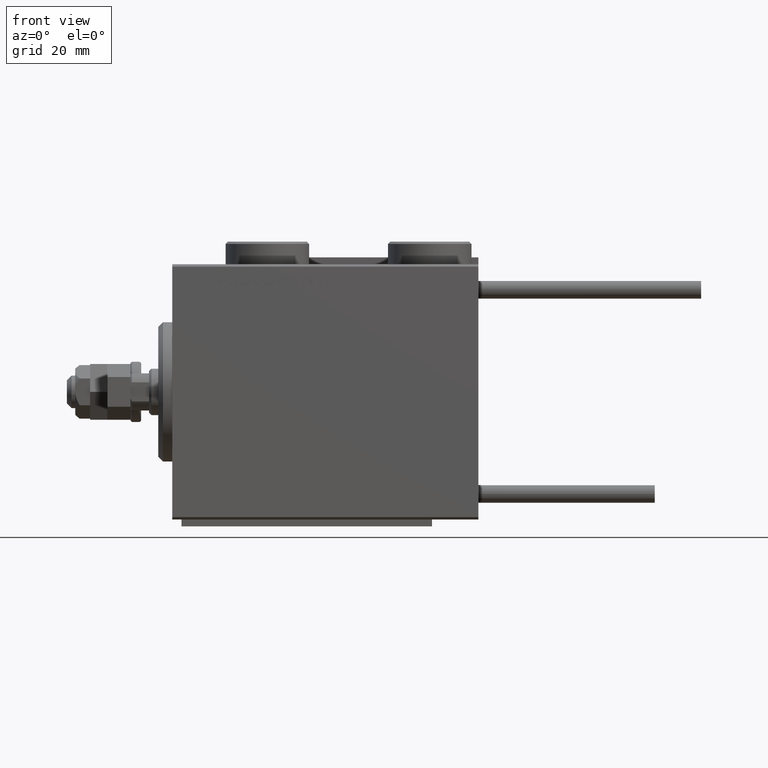
[diagram: clean part render]
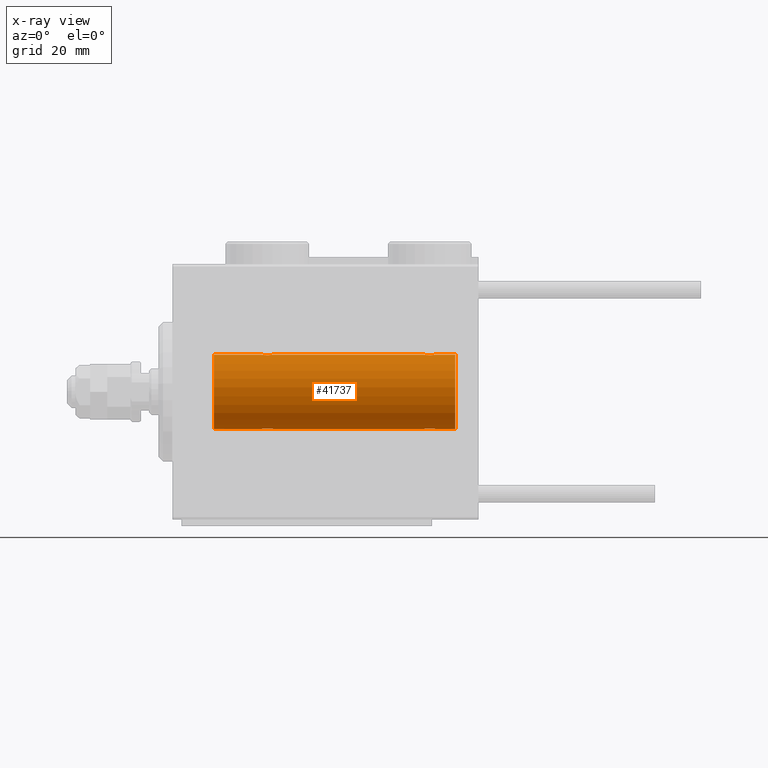
[diagram: x-ray — body ghosted, one internal face saturated and labeled with its STEP entity id]
A machine part, front view, then the same camera in x-ray: the body is ghosted and one INTERNAL B-rep face — a face not visible from any outside direction — is saturated and labeled: STEP entity #41737.
In plain terms, the highlighted cylindrical surface (partial cylindrical patch) has radius 8 mm, axis along (-1, -0, -0).
Its self-contained STEP definition (entity closure, byte-faithful):
#380 = DIRECTION ( 'NONE',  ( -1.000000000000000000, -0.000000000000000000, -0.000000000000000000 ) ) ;
#732 = VERTEX_POINT ( 'NONE', #14479 ) ;
#917 = CARTESIAN_POINT ( 'NONE',  ( 54.25000000000000711, -4.052181254894032391E-23, 7.999999999999998224 ) ) ;
#974 = ORIENTED_EDGE ( 'NONE', *, *, #30903, .T. ) ;
#1291 = CARTESIAN_POINT ( 'NONE',  ( 21.71666607977187269, -0.3297258132310478262, 7.994620111903506299 ) ) ;
#1518 = CARTESIAN_POINT ( 'NONE',  ( 21.71715712019488365, -0.3279446529214860018, -7.994696267489723951 ) ) ;
#2012 = EDGE_CURVE ( 'NONE', #4671, #4572, #33821, .T. ) ;
#2342 = CARTESIAN_POINT ( 'NONE',  ( 21.75000000000000355, 1.907091577397388232E-15, 7.999999999999998224 ) ) ;
#2602 = DIRECTION ( 'NONE',  ( -1.000000000000000000, -0.000000000000000000, -0.000000000000000000 ) ) ;
#2719 = CARTESIAN_POINT ( 'NONE',  ( 9.000000000000001776, 9.797174393178821713E-16, -7.999999999999998224 ) ) ;
#4057 = DIRECTION ( 'NONE',  ( 0.000000000000000000, 0.000000000000000000, 1.000000000000000000 ) ) ;
#4287 = CARTESIAN_POINT ( 'NONE',  ( 54.25000000000000711, -1.036741371822870700E-14, -7.999999999999998224 ) ) ;
#4543 = CARTESIAN_POINT ( 'NONE',  ( 21.75000000000000355, 1.907091577397388232E-15, 7.999999999999998224 ) ) ;
#4572 = VERTEX_POINT ( 'NONE', #35739 ) ;
#4671 = VERTEX_POINT ( 'NONE', #34104 ) ;
#5070 = CARTESIAN_POINT ( 'NONE',  ( 55.33559448851097784, -1.250104850332083517, -7.901723728054485640 ) ) ;
#5155 = CARTESIAN_POINT ( 'NONE',  ( 61.00000000000000000, 0.000000000000000000, 7.999999999999998224 ) ) ;
#5407 = CARTESIAN_POINT ( 'NONE',  ( 21.12714162834985743, -1.084361243153319165, -7.926301147147063908 ) ) ;
#5793 = CARTESIAN_POINT ( 'NONE',  ( 21.49841755665748266, -0.7695044314719060585, 7.963745725343517101 ) ) ;
#6102 = VERTEX_POINT ( 'NONE', #35877 ) ;
#6321 = CARTESIAN_POINT ( 'NONE',  ( 21.59165033467901296, -0.6303134207467948613, 7.976551562999473433 ) ) ;
#7841 = CARTESIAN_POINT ( 'NONE',  ( 56.74999999999999289, -3.454530624804322692E-16, 7.999999999999998224 ) ) ;
#8880 = CARTESIAN_POINT ( 'NONE',  ( 54.87285837165013902, -1.084361243153322718, 7.926301147147063908 ) ) ;
#8959 = VECTOR ( 'NONE', #46379, 1000.000000000000000 ) ;
#9299 = VECTOR ( 'NONE', #45256, 1000.000000000000000 ) ;
#9408 = LINE ( 'NONE', #33320, #9299 ) ;
#10335 = EDGE_CURVE ( 'NONE', #19863, #18484, #38795, .T. ) ;
#10492 = VERTEX_POINT ( 'NONE', #4543 ) ;
#10536 = B_SPLINE_CURVE_WITH_KNOTS ( 'NONE', 3,
 ( #25454, #21994, #18278, #22261, #14299, #22514, #50925, #38194, #21481, #18017, #42688, #26512, #37670, #42422, #50126, #5793, #6321, #1291, #50387, #2342 ),
 .UNSPECIFIED., .F., .F.,
 ( 4, 2, 2, 2, 2, 2, 2, 2, 2, 4 ),
 ( 0.003914068143704985125, 0.004403205918210099414, 0.004892343692715212834, 0.005136912579967770412, 0.005381481467220327990, 0.005870619241725442278, 0.006359757016230556566, 0.006848894790735670854, 0.007338032565240786009, 0.007827170339745899430 ),
 .UNSPECIFIED. ) ;
#11691 = VERTEX_POINT ( 'NONE', #29420 ) ;
#12035 = CARTESIAN_POINT ( 'NONE',  ( 61.00000000000000000, 0.000000000000000000, 0.000000000000000000 ) ) ;
#12343 = CARTESIAN_POINT ( 'NONE',  ( 56.59165033467902362, -0.6303134207467944172, 7.976551562999475209 ) ) ;
#12685 = LINE ( 'NONE', #37631, #38366 ) ;
#13132 = CARTESIAN_POINT ( 'NONE',  ( 56.71666607977188335, -0.3297258132310478818, 7.994620111903506299 ) ) ;
#13650 = CARTESIAN_POINT ( 'NONE',  ( 19.40834966532100481, -0.6303134207467994132, -7.976551562999471656 ) ) ;
#14299 = CARTESIAN_POINT ( 'NONE',  ( 19.50041313324087611, -0.7680324342712183672, 7.963892330120039276 ) ) ;
#14479 = CARTESIAN_POINT ( 'NONE',  ( 61.00000000000000000, 0.000000000000000000, 7.999999999999998224 ) ) ;
#14658 = DIRECTION ( 'NONE',  ( 0.000000000000000000, 0.000000000000000000, 1.000000000000000000 ) ) ;
#14742 = CARTESIAN_POINT ( 'NONE',  ( 19.25000000000000000, -4.052141811848771341E-23, 7.999999999999998224 ) ) ;
#14873 = EDGE_CURVE ( 'NONE', #6102, #11691, #17098, .T. ) ;
#14886 = EDGE_CURVE ( 'NONE', #29842, #18484, #29568, .T. ) ;
#14938 = DIRECTION ( 'NONE',  ( -1.000000000000000000, -0.000000000000000000, -0.000000000000000000 ) ) ;
#15684 = B_SPLINE_CURVE_WITH_KNOTS ( 'NONE', 3,
 ( #917, #48968, #24290, #29058, #20312, #45254, #36498, #8880, #17117, #25074, #41272, #49498, #32252, #20052, #28281, #52430, #12343, #13132, #44210, #7841 ),
 .UNSPECIFIED., .F., .F.,
 ( 4, 2, 2, 2, 2, 2, 2, 2, 2, 4 ),
 ( 0.003914068143704941757, 0.004403205918210043035, 0.004892343692715144313, 0.005136912579967701890, 0.005381481467220259468, 0.005870619241725375491, 0.006359757016230491514, 0.006848894790735606669, 0.007338032565240723559, 0.007827170339745838715 ),
 .UNSPECIFIED. ) ;
#15972 = CARTESIAN_POINT ( 'NONE',  ( 56.32687899779139684, -0.9409612394163512361, -7.944680966683013601 ) ) ;
#16574 = CARTESIAN_POINT ( 'NONE',  ( 19.87056207267771768, -1.092287957405119636, -7.925333492638530153 ) ) ;
#16839 = CARTESIAN_POINT ( 'NONE',  ( 21.05544625654724200, -1.122809931695431640, -7.920878051565289901 ) ) ;
#17073 = ORIENTED_EDGE ( 'NONE', *, *, #32156, .T. ) ;
#17098 = B_SPLINE_CURVE_WITH_KNOTS ( 'NONE', 3,
 ( #33919, #21702, #1518, #34706, #29926, #49834, #25686, #5407, #16839, #33308, #32777, #25062, #20827, #16574, #36757, #40731, #13650, #28784, #45756, #48959 ),
 .UNSPECIFIED., .F., .F.,
 ( 4, 2, 2, 2, 2, 2, 2, 2, 2, 4 ),
 ( 0.003914068143704951298, 0.004403205918210056913, 0.004892343692715161660, 0.005136912579967714901, 0.005381481467220267274, 0.005870619241725382430, 0.006359757016230496718, 0.006848894790735611873, 0.007338032565240727029, 0.007827170339745842184 ),
 .UNSPECIFIED. ) ;
#17117 = CARTESIAN_POINT ( 'NONE',  ( 54.94455374345276510, -1.122809931695435859, 7.920878051565284572 ) ) ;
#17441 = CARTESIAN_POINT ( 'NONE',  ( 56.75000000000000711, -0.1632520343443074340, -7.999999999999998224 ) ) ;
#18017 = CARTESIAN_POINT ( 'NONE',  ( 20.17169333885885862, -1.217212176555599878, 7.907113222863031865 ) ) ;
#18278 = CARTESIAN_POINT ( 'NONE',  ( 19.28284287980512346, -0.3279446529214878892, 7.994696267489722175 ) ) ;
#18484 = VERTEX_POINT ( 'NONE', #46914 ) ;
#18704 = AXIS2_PLACEMENT_3D ( 'NONE', #12035, #28229, #4057 ) ;
#19423 = ORIENTED_EDGE ( 'NONE', *, *, #2012, .T. ) ;
#19863 = VERTEX_POINT ( 'NONE', #2719 ) ;
#20052 = CARTESIAN_POINT ( 'NONE',  ( 56.12943792732231429, -1.092287957405118304, 7.925333492638526600 ) ) ;
#20259 = B_SPLINE_CURVE_WITH_KNOTS ( 'NONE', 3,
 ( #37633, #17441, #33652, #49823, #24460, #15972, #28701, #24985, #28972, #21017, #29229, #5070, #44902, #28196, #24732, #49413, #33231, #36150, #49139, #4287 ),
 .UNSPECIFIED., .F., .F.,
 ( 4, 2, 2, 2, 2, 2, 2, 2, 2, 4 ),
 ( 0.003914068143704940023, 0.004403205918210062117, 0.004892343692715184211, 0.005136912579967737452, 0.005381481467220291560, 0.005870619241725400644, 0.006359757016230508861, 0.006848894790735617077, 0.007338032565240725294, 0.007827170339745833511 ),
 .UNSPECIFIED. ) ;
#20312 = CARTESIAN_POINT ( 'NONE',  ( 54.50041313324088321, -0.7680324342712198105, 7.963892330120035723 ) ) ;
#20827 = CARTESIAN_POINT ( 'NONE',  ( 20.17298283628253941, -1.217515856520240192, -7.907063872927301951 ) ) ;
#21017 = CARTESIAN_POINT ( 'NONE',  ( 55.82830666114115559, -1.217212176555605430, -7.907113222863028312 ) ) ;
#21466 = VERTEX_POINT ( 'NONE', #22542 ) ;
#21481 = CARTESIAN_POINT ( 'NONE',  ( 19.94455374345276155, -1.122809931695431640, 7.920878051565288125 ) ) ;
#21702 = CARTESIAN_POINT ( 'NONE',  ( 21.75000000000000355, -0.1632520343443071564, -7.999999999999996447 ) ) ;
#21994 = CARTESIAN_POINT ( 'NONE',  ( 19.25000000000000355, -0.1632520343443080724, 8.000000000000000000 ) ) ;
#22067 = ORIENTED_EDGE ( 'NONE', *, *, #14886, .F. ) ;
#22092 = CARTESIAN_POINT ( 'NONE',  ( 54.25000000000000711, -4.052181254894032391E-23, 7.999999999999998224 ) ) ;
#22261 = CARTESIAN_POINT ( 'NONE',  ( 19.40749082144729343, -0.6288424646912649241, 7.976670562295706368 ) ) ;
#22514 = CARTESIAN_POINT ( 'NONE',  ( 19.67312100220859605, -0.9409612394163516802, 7.944680966683013601 ) ) ;
#22542 = CARTESIAN_POINT ( 'NONE',  ( 56.74999999999999289, -3.454530624804322692E-16, 7.999999999999998224 ) ) ;
#24234 = FACE_OUTER_BOUND ( 'NONE', #33065, .T. ) ;
#24290 = CARTESIAN_POINT ( 'NONE',  ( 54.28284287980512346, -0.3279446529214878336, 7.994696267489723951 ) ) ;
#24460 = CARTESIAN_POINT ( 'NONE',  ( 56.49958686675912389, -0.7680324342712167018, -7.963892330120039276 ) ) ;
#24732 = CARTESIAN_POINT ( 'NONE',  ( 54.73184514123550315, -0.9994562523959213962, -7.938165420771274405 ) ) ;
#24985 = CARTESIAN_POINT ( 'NONE',  ( 56.12714162834986098, -1.084361243153323162, -7.926301147147062132 ) ) ;
#25004 = VECTOR ( 'NONE', #14938, 1000.000000000000000 ) ;
#25062 = CARTESIAN_POINT ( 'NONE',  ( 20.33559448851098495, -1.250104850332076412, -7.901723728054489193 ) ) ;
#25074 = CARTESIAN_POINT ( 'NONE',  ( 55.17169333885887283, -1.217212176555603209, 7.907113222863028312 ) ) ;
#25454 = CARTESIAN_POINT ( 'NONE',  ( 19.25000000000000000, -4.052141811848771341E-23, 7.999999999999998224 ) ) ;
#25686 = CARTESIAN_POINT ( 'NONE',  ( 21.26267005793690856, -0.9937204387496718638, -7.938174152191994182 ) ) ;
#25798 = EDGE_CURVE ( 'NONE', #50820, #21466, #15684, .T. ) ;
#26512 = CARTESIAN_POINT ( 'NONE',  ( 20.66440551148902571, -1.250104850332075523, 7.901723728054487417 ) ) ;
#26717 = DIRECTION ( 'NONE',  ( -1.000000000000000000, -0.000000000000000000, -0.000000000000000000 ) ) ;
#27907 = EDGE_CURVE ( 'NONE', #33625, #6102, #51159, .T. ) ;
#28196 = CARTESIAN_POINT ( 'NONE',  ( 54.87056207267770702, -1.092287957405126075, -7.925333492638530153 ) ) ;
#28229 = DIRECTION ( 'NONE',  ( -1.000000000000000000, -0.000000000000000000, -0.000000000000000000 ) ) ;
#28281 = CARTESIAN_POINT ( 'NONE',  ( 56.26815485876451817, -0.9994562523959155120, 7.938165420771272629 ) ) ;
#28701 = CARTESIAN_POINT ( 'NONE',  ( 56.26267005793692277, -0.9937204387496755276, -7.938174152191995958 ) ) ;
#28784 = CARTESIAN_POINT ( 'NONE',  ( 19.28333392022814508, -0.3297258132310537104, -7.994620111903502746 ) ) ;
#28972 = CARTESIAN_POINT ( 'NONE',  ( 56.05544625654724200, -1.122809931695436747, -7.920878051565286349 ) ) ;
#29058 = CARTESIAN_POINT ( 'NONE',  ( 54.40749082144729698, -0.6288424646912651461, 7.976670562295704592 ) ) ;
#29229 = CARTESIAN_POINT ( 'NONE',  ( 55.66599605016009633, -1.249894643705226072, -7.901756981264366431 ) ) ;
#29420 = CARTESIAN_POINT ( 'NONE',  ( 19.25000000000000711, -2.863436859052075958E-15, -7.999999999999998224 ) ) ;
#29568 = LINE ( 'NONE', #5155, #29612 ) ;
#29612 = VECTOR ( 'NONE', #380, 1000.000000000000000 ) ;
#29842 = VERTEX_POINT ( 'NONE', #14742 ) ;
#29926 = CARTESIAN_POINT ( 'NONE',  ( 21.49958686675913455, -0.7680324342712140373, -7.963892330120037499 ) ) ;
#30194 = CARTESIAN_POINT ( 'NONE',  ( 61.00000000000000000, 9.797174393178821713E-16, -7.999999999999998224 ) ) ;
#30380 = ORIENTED_EDGE ( 'NONE', *, *, #14873, .T. ) ;
#30903 = EDGE_CURVE ( 'NONE', #29842, #10492, #10536, .T. ) ;
#31787 = CARTESIAN_POINT ( 'NONE',  ( 61.00000000000000000, 9.797174393178821713E-16, -7.999999999999998224 ) ) ;
#32156 = EDGE_CURVE ( 'NONE', #11691, #19863, #51699, .T. ) ;
#32252 = CARTESIAN_POINT ( 'NONE',  ( 55.82701716371746414, -1.217515856520240636, 7.907063872927295733 ) ) ;
#32777 = CARTESIAN_POINT ( 'NONE',  ( 20.66599605016009278, -1.249894643705219854, -7.901756981264364654 ) ) ;
#33065 = EDGE_LOOP ( 'NONE', ( #37224, #19423, #47568, #44718, #30380, #17073, #35633, #22067, #974, #44536, #35859, #42705 ) ) ;
#33231 = CARTESIAN_POINT ( 'NONE',  ( 54.40834966532099770, -0.6303134207468062966, -7.976551562999469880 ) ) ;
#33308 = CARTESIAN_POINT ( 'NONE',  ( 20.82830666114115559, -1.217212176555599434, -7.907113222863031865 ) ) ;
#33320 = CARTESIAN_POINT ( 'NONE',  ( 61.00000000000000000, 0.000000000000000000, 7.999999999999998224 ) ) ;
#33625 = VERTEX_POINT ( 'NONE', #35083 ) ;
#33652 = CARTESIAN_POINT ( 'NONE',  ( 56.71715712019487654, -0.3279446529214883888, -7.994696267489723951 ) ) ;
#33821 = LINE ( 'NONE', #47325, #25004 ) ;
#33919 = CARTESIAN_POINT ( 'NONE',  ( 21.75000000000000355, 9.797173987965608855E-16, -7.999999999999998224 ) ) ;
#34104 = CARTESIAN_POINT ( 'NONE',  ( 61.00000000000000000, 9.797174393178821713E-16, -7.999999999999998224 ) ) ;
#34193 = AXIS2_PLACEMENT_3D ( 'NONE', #47092, #42849, #34904 ) ;
#34706 = CARTESIAN_POINT ( 'NONE',  ( 21.59250917855271013, -0.6288424646912628146, -7.976670562295704592 ) ) ;
#34904 = DIRECTION ( 'NONE',  ( 0.000000000000000000, 0.000000000000000000, 1.000000000000000000 ) ) ;
#35083 = CARTESIAN_POINT ( 'NONE',  ( 54.25000000000000711, -1.036741371822870700E-14, -7.999999999999998224 ) ) ;
#35633 = ORIENTED_EDGE ( 'NONE', *, *, #10335, .T. ) ;
#35678 = CYLINDRICAL_SURFACE ( 'NONE', #18704, 7.999999999999998224 ) ;
#35739 = CARTESIAN_POINT ( 'NONE',  ( 56.74999999999999289, 9.797173987957720246E-16, -7.999999999999998224 ) ) ;
#35859 = ORIENTED_EDGE ( 'NONE', *, *, #25798, .T. ) ;
#35877 = CARTESIAN_POINT ( 'NONE',  ( 21.75000000000000355, 9.797173987965608855E-16, -7.999999999999998224 ) ) ;
#36150 = CARTESIAN_POINT ( 'NONE',  ( 54.28333392022815218, -0.3297258132310600942, -7.994620111903499193 ) ) ;
#36498 = CARTESIAN_POINT ( 'NONE',  ( 54.73732994206311275, -0.9937204387496761937, 7.938174152191992405 ) ) ;
#36757 = CARTESIAN_POINT ( 'NONE',  ( 19.73184514123549604, -0.9994562523959139577, -7.938165420771276182 ) ) ;
#37224 = ORIENTED_EDGE ( 'NONE', *, *, #50431, .F. ) ;
#37493 = EDGE_CURVE ( 'NONE', #4572, #33625, #20259, .T. ) ;
#37631 = CARTESIAN_POINT ( 'NONE',  ( 61.00000000000000000, 0.000000000000000000, 7.999999999999998224 ) ) ;
#37633 = CARTESIAN_POINT ( 'NONE',  ( 56.74999999999999289, 9.797173987957720246E-16, -7.999999999999998224 ) ) ;
#37670 = CARTESIAN_POINT ( 'NONE',  ( 20.82701716371747480, -1.217515856520238637, 7.907063872927298398 ) ) ;
#38194 = CARTESIAN_POINT ( 'NONE',  ( 19.87285837165014613, -1.084361243153319387, 7.926301147147063908 ) ) ;
#38366 = VECTOR ( 'NONE', #26717, 1000.000000000000000 ) ;
#38795 = CIRCLE ( 'NONE', #43032, 7.999999999999998224 ) ;
#39275 = CIRCLE ( 'NONE', #34193, 7.999999999999998224 ) ;
#39292 = EDGE_CURVE ( 'NONE', #732, #21466, #9408, .T. ) ;
#40731 = CARTESIAN_POINT ( 'NONE',  ( 19.50158244334252089, -0.7695044314719097223, -7.963745725343517101 ) ) ;
#41272 = CARTESIAN_POINT ( 'NONE',  ( 55.33400394983991788, -1.249894643705222963, 7.901756981264366431 ) ) ;
#41737 = ADVANCED_FACE ( 'NONE', ( #24234 ), #35678, .F. ) ;
#42422 = CARTESIAN_POINT ( 'NONE',  ( 21.12943792732229298, -1.092287957405117194, 7.925333492638531929 ) ) ;
#42688 = CARTESIAN_POINT ( 'NONE',  ( 20.33400394983990722, -1.249894643705219410, 7.901756981264364654 ) ) ;
#42705 = ORIENTED_EDGE ( 'NONE', *, *, #39292, .F. ) ;
#42849 = DIRECTION ( 'NONE',  ( -1.000000000000000000, 0.000000000000000000, 0.000000000000000000 ) ) ;
#42909 = VECTOR ( 'NONE', #2602, 1000.000000000000000 ) ;
#43032 = AXIS2_PLACEMENT_3D ( 'NONE', #43577, #43055, #14658 ) ;
#43055 = DIRECTION ( 'NONE',  ( -1.000000000000000000, 0.000000000000000000, 0.000000000000000000 ) ) ;
#43577 = CARTESIAN_POINT ( 'NONE',  ( 9.000000000000001776, 0.000000000000000000, 0.000000000000000000 ) ) ;
#44210 = CARTESIAN_POINT ( 'NONE',  ( 56.75000000000001421, -0.1654128203352880633, 8.000000000000003553 ) ) ;
#44536 = ORIENTED_EDGE ( 'NONE', *, *, #48538, .F. ) ;
#44718 = ORIENTED_EDGE ( 'NONE', *, *, #27907, .T. ) ;
#44902 = CARTESIAN_POINT ( 'NONE',  ( 55.17298283628252165, -1.217515856520246631, -7.907063872927293957 ) ) ;
#45254 = CARTESIAN_POINT ( 'NONE',  ( 54.67312100220860316, -0.9409612394163536786, 7.944680966683013601 ) ) ;
#45256 = DIRECTION ( 'NONE',  ( -1.000000000000000000, -0.000000000000000000, -0.000000000000000000 ) ) ;
#45756 = CARTESIAN_POINT ( 'NONE',  ( 19.25000000000001421, -0.1654128203352907833, -8.000000000000003553 ) ) ;
#46379 = DIRECTION ( 'NONE',  ( -1.000000000000000000, -0.000000000000000000, -0.000000000000000000 ) ) ;
#46914 = CARTESIAN_POINT ( 'NONE',  ( 9.000000000000001776, 0.000000000000000000, 7.999999999999998224 ) ) ;
#47092 = CARTESIAN_POINT ( 'NONE',  ( 61.00000000000000000, 0.000000000000000000, 0.000000000000000000 ) ) ;
#47325 = CARTESIAN_POINT ( 'NONE',  ( 61.00000000000000000, 9.797174393178821713E-16, -7.999999999999998224 ) ) ;
#47568 = ORIENTED_EDGE ( 'NONE', *, *, #37493, .T. ) ;
#48538 = EDGE_CURVE ( 'NONE', #50820, #10492, #12685, .T. ) ;
#48959 = CARTESIAN_POINT ( 'NONE',  ( 19.25000000000000711, -2.863436859052075958E-15, -7.999999999999998224 ) ) ;
#48968 = CARTESIAN_POINT ( 'NONE',  ( 54.25000000000000711, -0.1632520343443082389, 7.999999999999996447 ) ) ;
#49139 = CARTESIAN_POINT ( 'NONE',  ( 54.25000000000000000, -0.1654128203352979443, -8.000000000000000000 ) ) ;
#49413 = CARTESIAN_POINT ( 'NONE',  ( 54.50158244334251378, -0.7695044314719171608, -7.963745725343515325 ) ) ;
#49498 = CARTESIAN_POINT ( 'NONE',  ( 55.66440551148902927, -1.250104850332078188, 7.901723728054485640 ) ) ;
#49823 = CARTESIAN_POINT ( 'NONE',  ( 56.59250917855270302, -0.6288424646912655902, -7.976670562295706368 ) ) ;
#49834 = CARTESIAN_POINT ( 'NONE',  ( 21.32687899779141460, -0.9409612394163484606, -7.944680966683015377 ) ) ;
#50126 = CARTESIAN_POINT ( 'NONE',  ( 21.26815485876451461, -0.9994562523959116263, 7.938165420771272629 ) ) ;
#50387 = CARTESIAN_POINT ( 'NONE',  ( 21.75000000000001066, -0.1654128203352903115, 8.000000000000001776 ) ) ;
#50431 = EDGE_CURVE ( 'NONE', #4671, #732, #39275, .T. ) ;
#50820 = VERTEX_POINT ( 'NONE', #22092 ) ;
#50925 = CARTESIAN_POINT ( 'NONE',  ( 19.73732994206309499, -0.9937204387496718638, 7.938174152191987076 ) ) ;
#51159 = LINE ( 'NONE', #30194, #8959 ) ;
#51699 = LINE ( 'NONE', #31787, #42909 ) ;
#52430 = CARTESIAN_POINT ( 'NONE',  ( 56.49841755665750043, -0.7695044314719098333, 7.963745725343520654 ) ) ;